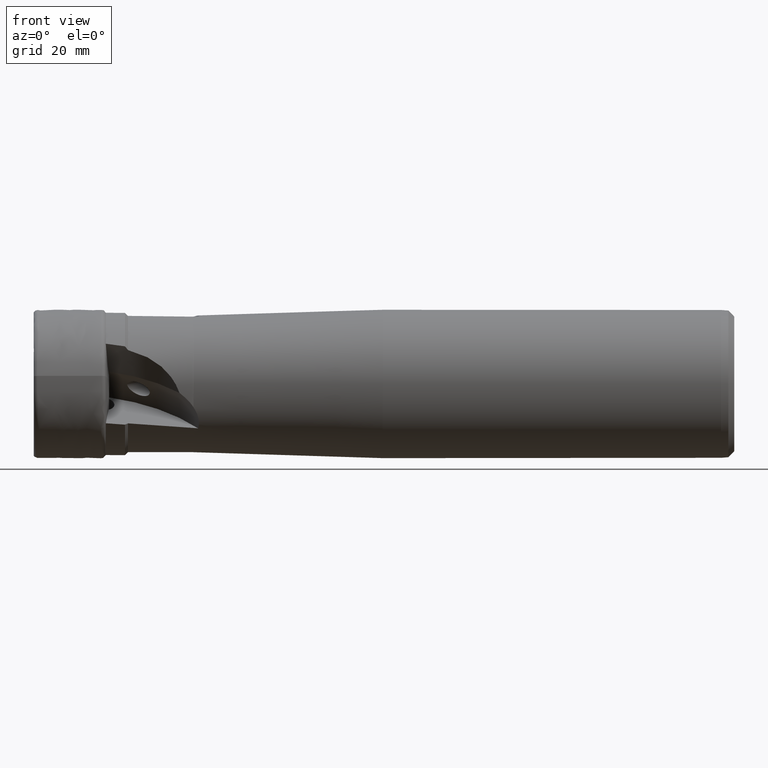
[diagram: clean part render]
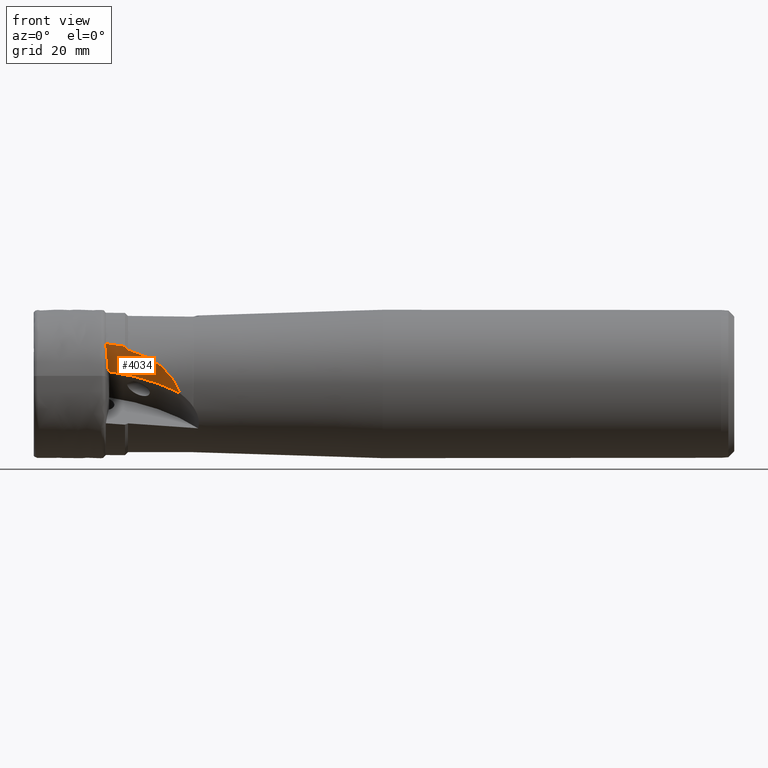
[diagram: same view with one face highlighted and labeled with its STEP entity id]
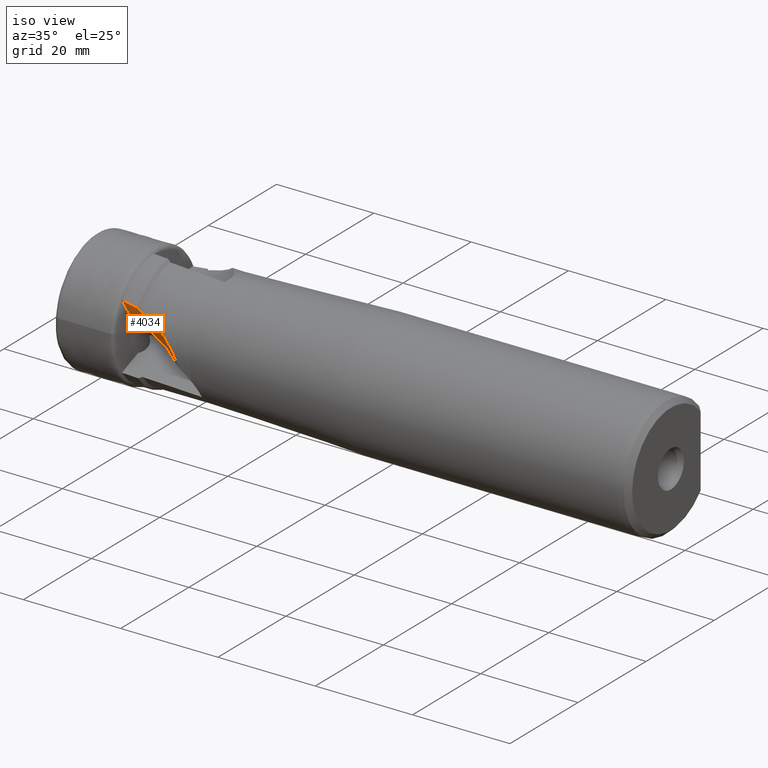
[diagram: same view with one face highlighted and labeled with its STEP entity id]
A machine part, front view. The second image highlights one B-rep face of the part: STEP entity #4034.
A second angle (iso view) of the same face is appended — the face is thin or edge-on in the first view.
In plain terms, the highlighted cylindrical surface (partial cylindrical patch) has radius 21.646 mm, axis along (-0.0872, 0.4981, -0.8627).
Its self-contained STEP definition (entity closure, byte-faithful):
#25 = CARTESIAN_POINT ( 'NONE',  ( 11.30899069866167200, -9.780722614549704400, 6.523573934145074900 ) ) ;
#106 = CARTESIAN_POINT ( 'NONE',  ( 19.86359982629875300, -10.95050224017147600, 3.526210094218061200 ) ) ;
#124 = CARTESIAN_POINT ( 'NONE',  ( 22.84256878414825200, -11.50443636610722600, 0.2999040005674206100 ) ) ;
#130 = CARTESIAN_POINT ( 'NONE',  ( 8.798700602812610700, -22.94659915767097400, -13.85532439799668000 ) ) ;
#140 = CIRCLE ( 'NONE', #1951, 21.64601809837321900 ) ;
#165 = ORIENTED_EDGE ( 'NONE', *, *, #4075, .T. ) ;
#331 = VERTEX_POINT ( 'NONE', #2406 ) ;
#343 = CARTESIAN_POINT ( 'NONE',  ( 11.34459464083095300, -9.533443247404513000, 6.083772501598466500 ) ) ;
#446 = CARTESIAN_POINT ( 'NONE',  ( 19.45778878190479900, -10.85611447276787800, 3.803515578296175400 ) ) ;
#514 = CARTESIAN_POINT ( 'NONE',  ( 11.71453628735178800, -7.298980259824182900, 2.070755615729761100 ) ) ;
#560 = CARTESIAN_POINT ( 'NONE',  ( 14.50000000000041000, -10.20020639630153700, 6.321059204978184600 ) ) ;
#577 = EDGE_CURVE ( 'NONE', #331, #3596, #1005, .T. ) ;
#665 = CARTESIAN_POINT ( 'NONE',  ( 11.41452327440358500, -9.039547535630200400, 5.203693621855030900 ) ) ;
#721 = EDGE_CURVE ( 'NONE', #1879, #1222, #2974, .T. ) ;
#981 = CARTESIAN_POINT ( 'NONE',  ( 11.50434835498919000, -8.382264344478439700, 4.029247157921149700 ) ) ;
#1005 = B_SPLINE_CURVE_WITH_KNOTS ( 'NONE', 3,
 ( #2497, #1504, #3579, #1264 ),
 .UNSPECIFIED., .F., .F.,
 ( 4, 4 ),
 ( 0.001256063672557265300, 0.004537304999685222400 ),
 .UNSPECIFIED. ) ;
#1033 = CARTESIAN_POINT ( 'NONE',  ( 15.95535646858695800, -10.12936675019091500, 5.452008793924231400 ) ) ;
#1089 = FACE_OUTER_BOUND ( 'NONE', #2195, .T. ) ;
#1169 = EDGE_CURVE ( 'NONE', #331, #3540, #3886, .T. ) ;
#1222 = VERTEX_POINT ( 'NONE', #4003 ) ;
#1264 = CARTESIAN_POINT ( 'NONE',  ( 14.50000000000041000, -10.20020639630153700, 6.321059204978184600 ) ) ;
#1269 = CARTESIAN_POINT ( 'NONE',  ( 14.99999999999985600, -9.990634440045120400, 5.695368599606845300 ) ) ;
#1319 = CARTESIAN_POINT ( 'NONE',  ( 11.57966482397821300, -7.835989234090174400, 3.049772426002239200 ) ) ;
#1407 = B_SPLINE_CURVE_WITH_KNOTS ( 'NONE', 3,
 ( #560, #2517, #1547, #3854 ),
 .UNSPECIFIED., .F., .F.,
 ( 4, 4 ),
 ( 3.265828502289202500E-007, 0.0008282209834222334700 ),
 .UNSPECIFIED. ) ;
#1437 = CARTESIAN_POINT ( 'NONE',  ( 9.339066207848093300, -26.03480272175541200, -8.506398920887207300 ) ) ;
#1442 = CARTESIAN_POINT ( 'NONE',  ( 23.50464770878490800, -11.46294972578844600, -1.036549574885009500 ) ) ;
#1495 = CARTESIAN_POINT ( 'NONE',  ( 14.50000000000041000, -10.20020639630153700, 6.321059204978184600 ) ) ;
#1504 = CARTESIAN_POINT ( 'NONE',  ( 12.35176691538102000, -9.959156885938032400, 6.694917884230974900 ) ) ;
#1547 = CARTESIAN_POINT ( 'NONE',  ( 14.83576158149903000, -10.05949275736189100, 5.906207198600846200 ) ) ;
#1612 = ORIENTED_EDGE ( 'NONE', *, *, #577, .F. ) ;
#1630 = CARTESIAN_POINT ( 'NONE',  ( 11.27743738042222600, -9.888088224003086100, 6.716649565960580900 ) ) ;
#1646 = CARTESIAN_POINT ( 'NONE',  ( 11.65238429149799000, -7.512395621376755100, 2.462361468746087700 ) ) ;
#1665 = CARTESIAN_POINT ( 'NONE',  ( 18.19245522893238800, -10.57244143781389000, 4.530197664599544500 ) ) ;
#1712 = CARTESIAN_POINT ( 'NONE',  ( 21.67662997709300800, -11.34752308785989800, 1.900462521212545700 ) ) ;
#1741 = EDGE_CURVE ( 'NONE', #3596, #1879, #1407, .T. ) ;
#1768 = DIRECTION ( 'NONE',  ( 0.0000000000000000000, 0.8660254037844362700, 0.5000000000000041100 ) ) ;
#1879 = VERTEX_POINT ( 'NONE', #1269 ) ;
#1951 = AXIS2_PLACEMENT_3D ( 'NONE', #1437, #3750, #1768 ) ;
#1957 = CARTESIAN_POINT ( 'NONE',  ( 20.99301347740153600, -11.20742020503846500, 2.602262548580092100 ) ) ;
#1971 = CARTESIAN_POINT ( 'NONE',  ( 11.30711907182069000, -9.808594285607068000, 6.572818382124256500 ) ) ;
#1995 = CARTESIAN_POINT ( 'NONE',  ( 11.71453628735178800, -7.298980259824182900, 2.070755615729761100 ) ) ;
#2056 = CARTESIAN_POINT ( 'NONE',  ( 22.58180431616455400, -11.48454106715468400, 0.7189419455300378700 ) ) ;
#2074 = DIRECTION ( 'NONE',  ( 0.0000000000000000000, 0.8660254037844362700, 0.5000000000000041100 ) ) ;
#2166 = CARTESIAN_POINT ( 'NONE',  ( 18.62167682697712600, -10.66696953841225200, 4.305544456484805800 ) ) ;
#2195 = EDGE_LOOP ( 'NONE', ( #1612, #4030, #165, #2486, #2554 ) ) ;
#2288 = CARTESIAN_POINT ( 'NONE',  ( 11.32088577948336500, -9.698279779824666500, 6.376984851335945900 ) ) ;
#2381 = DIRECTION ( 'NONE',  ( -0.08715574274765847100, 0.4980973490458768200, -0.8627299156628185400 ) ) ;
#2406 = CARTESIAN_POINT ( 'NONE',  ( 11.25953682610515100, -9.912919880617444300, 6.762693209103856500 ) ) ;
#2486 = ORIENTED_EDGE ( 'NONE', *, *, #721, .F. ) ;
#2497 = CARTESIAN_POINT ( 'NONE',  ( 11.25953682610515100, -9.912919880617444300, 6.762693209103856500 ) ) ;
#2517 = CARTESIAN_POINT ( 'NONE',  ( 14.66900051898004200, -10.12924879204469900, 6.114729225041080500 ) ) ;
#2554 = ORIENTED_EDGE ( 'NONE', *, *, #1741, .F. ) ;
#2628 = CYLINDRICAL_SURFACE ( 'NONE', #3064, 21.64601809837321900 ) ;
#2629 = CARTESIAN_POINT ( 'NONE',  ( 11.36804094184650000, -9.368750844108930700, 5.790457932066349400 ) ) ;
#2951 = CARTESIAN_POINT ( 'NONE',  ( 11.44497040287864900, -8.820319807232410300, 4.812333641798376000 ) ) ;
#2974 = B_SPLINE_CURVE_WITH_KNOTS ( 'NONE', 3,
 ( #3003, #1033, #3097, #1665, #2166, #446, #106, #3691, #1957, #1712, #3371, #2056, #124, #3229, #1442, #3929 ),
 .UNSPECIFIED., .F., .F.,
 ( 4, 2, 2, 2, 2, 2, 2, 4 ),
 ( 3.576224061345498000E-018, 0.002951610925240698200, 0.004427416387861045400, 0.005903221850481392900, 0.007379027313101740500, 0.008854832775722087200, 0.01033063823834243600, 0.01180644370096278200 ),
 .UNSPECIFIED. ) ;
#3003 = CARTESIAN_POINT ( 'NONE',  ( 14.99999999999985600, -9.990634440045120400, 5.695368599606845300 ) ) ;
#3064 = AXIS2_PLACEMENT_3D ( 'NONE', #130, #2381, #2074 ) ;
#3097 = CARTESIAN_POINT ( 'NONE',  ( 16.87436844274672500, -10.29858425827831600, 5.136730246035051000 ) ) ;
#3229 = CARTESIAN_POINT ( 'NONE',  ( 23.30358564945831300, -11.49390179233518700, -0.5763853741385089900 ) ) ;
#3283 = CARTESIAN_POINT ( 'NONE',  ( 11.53002118242685200, -8.163020814447618200, 3.637445556546927200 ) ) ;
#3348 = CARTESIAN_POINT ( 'NONE',  ( 11.25953682610515100, -9.912919880617444300, 6.762693209103856500 ) ) ;
#3371 = CARTESIAN_POINT ( 'NONE',  ( 21.99952129655959600, -11.40632008311789000, 1.519020475723219700 ) ) ;
#3540 = VERTEX_POINT ( 'NONE', #514 ) ;
#3579 = CARTESIAN_POINT ( 'NONE',  ( 13.43227974448476500, -10.05689578365248100, 6.552317571717567900 ) ) ;
#3596 = VERTEX_POINT ( 'NONE', #1495 ) ;
#3627 = CARTESIAN_POINT ( 'NONE',  ( 11.59947101757783900, -7.727462607639092900, 2.853919258722667600 ) ) ;
#3691 = CARTESIAN_POINT ( 'NONE',  ( 20.62989790905159300, -11.12584300635168500, 2.926307287107961800 ) ) ;
#3750 = DIRECTION ( 'NONE',  ( -0.08715574274765847100, 0.4980973490458768200, -0.8627299156628185400 ) ) ;
#3854 = CARTESIAN_POINT ( 'NONE',  ( 14.99999999999985600, -9.990634440045120400, 5.695368599606845300 ) ) ;
#3886 = B_SPLINE_CURVE_WITH_KNOTS ( 'NONE', 3,
 ( #3348, #1630, #3952, #1971, #25, #2288, #343, #2629, #665, #2951, #981, #3283, #1319, #3627, #1646, #3967, #1995 ),
 .UNSPECIFIED., .F., .F.,
 ( 4, 2, 2, 1, 2, 2, 2, 2, 4 ),
 ( 0.0001408006803522842300, 0.0003065922052561190200, 0.0004723837301599538700, 0.0008039667799676235100, 0.001467132879582965200, 0.002793465078813643300, 0.004119797278044320800, 0.004782963377659661700, 0.005446129477275001700 ),
 .UNSPECIFIED. ) ;
#3929 = CARTESIAN_POINT ( 'NONE',  ( 23.67047079365466200, -11.40104278000693800, -1.505398129550215000 ) ) ;
#3952 = CARTESIAN_POINT ( 'NONE',  ( 11.29052417923585800, -9.862266845412092300, 6.669456990782369300 ) ) ;
#3967 = CARTESIAN_POINT ( 'NONE',  ( 11.68502591588871600, -7.405819584239568000, 2.266632835020874600 ) ) ;
#4003 = CARTESIAN_POINT ( 'NONE',  ( 23.67047079365466200, -11.40104278000693800, -1.505398129550215000 ) ) ;
#4030 = ORIENTED_EDGE ( 'NONE', *, *, #1169, .T. ) ;
#4034 = ADVANCED_FACE ( 'NONE', ( #1089 ), #2628, .F. ) ;
#4075 = EDGE_CURVE ( 'NONE', #3540, #1222, #140, .T. ) ;